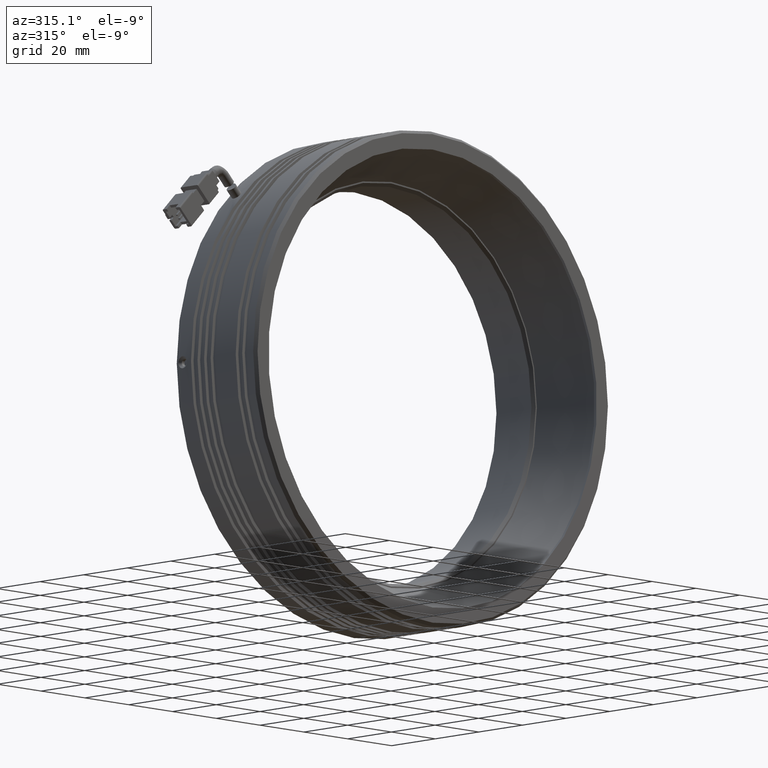
[diagram: clean part render]
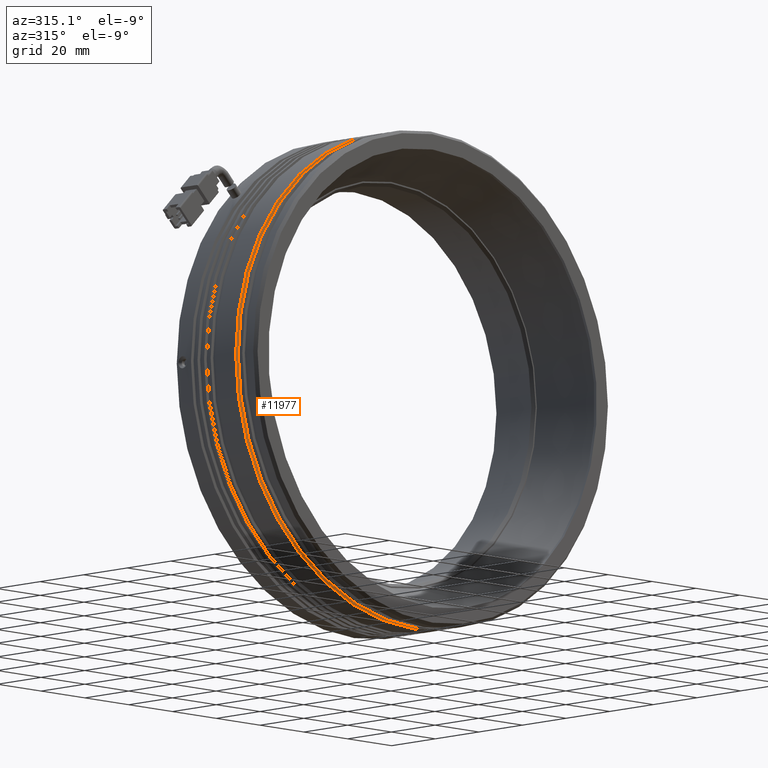
[diagram: same view with one face highlighted and labeled with its STEP entity id]
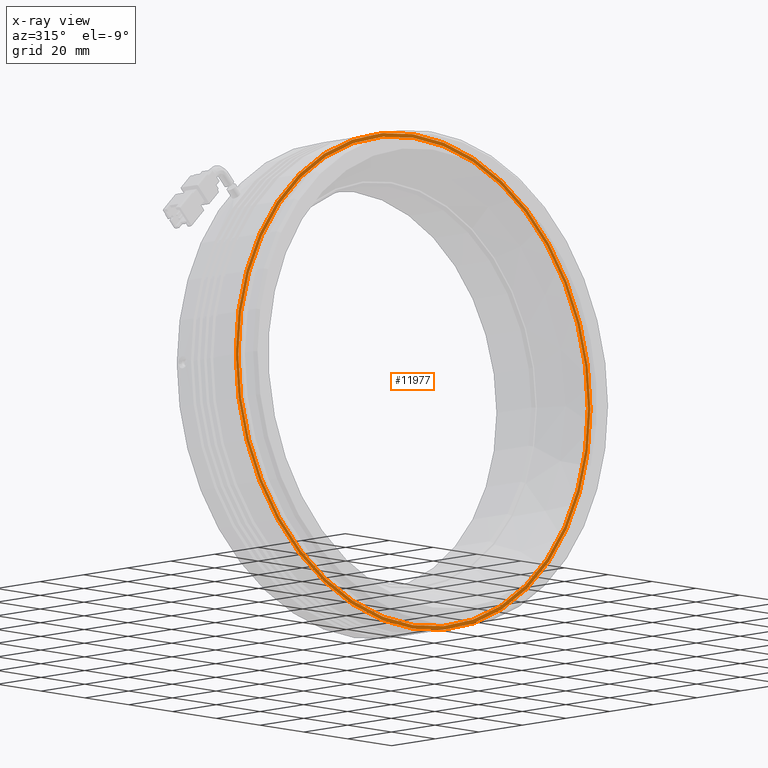
[diagram: x-ray of the same camera — body ghosted, the highlighted face saturated]
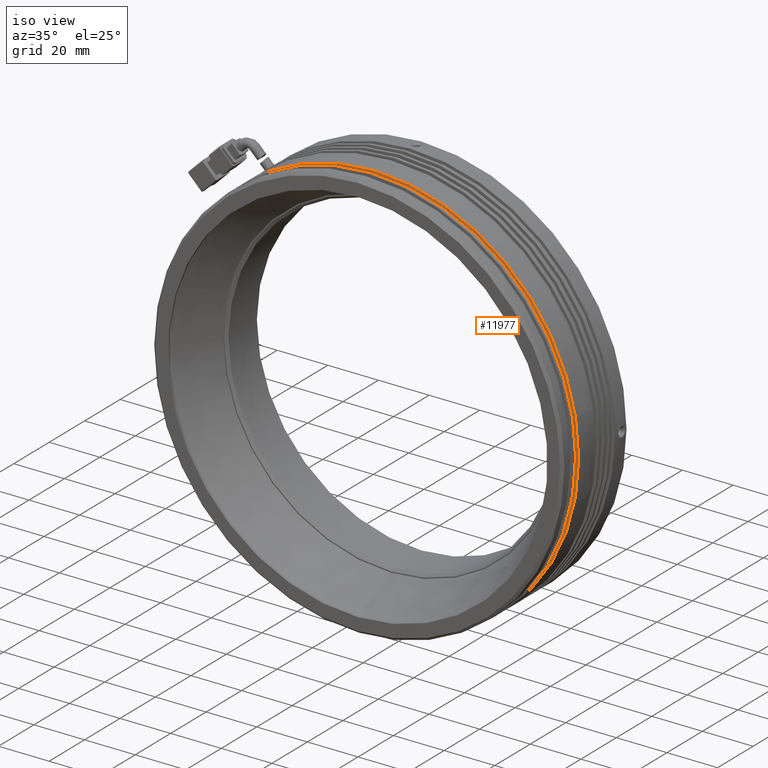
[diagram: same view with one face highlighted and labeled with its STEP entity id]
A machine part, auxiliary view. The second image highlights one B-rep face of the part: STEP entity #11977.
The next image is the same camera in x-ray: the body ghosted, the highlighted face saturated — about 0% of this face is hidden behind the body in this view.
A second angle (iso view) of the same face is appended — the face is thin or edge-on in the first view.
In plain terms, the highlighted planar face has unit normal (0, 1, 0).
Its self-contained STEP definition (entity closure, byte-faithful):
#106 = CIRCLE ( 'NONE', #4653, 80.99999999999995700 ) ;
#1209 = PLANE ( 'NONE',  #8910 ) ;
#1760 = DIRECTION ( 'NONE',  ( -0.0000000000000000000, -1.000000000000000000, -0.0000000000000000000 ) ) ;
#2113 = VERTEX_POINT ( 'NONE', #11861 ) ;
#2254 = DIRECTION ( 'NONE',  ( 0.0000000000000000000, 1.000000000000000000, 0.0000000000000000000 ) ) ;
#2586 = CARTESIAN_POINT ( 'NONE',  ( -9.785022266880036000, -0.1288856281599498600, 0.0000000000000000000 ) ) ;
#2601 = ORIENTED_EDGE ( 'NONE', *, *, #11670, .F. ) ;
#2995 = CARTESIAN_POINT ( 'NONE',  ( -9.785022266880036000, -0.1288856281599498600, 0.0000000000000000000 ) ) ;
#3282 = EDGE_LOOP ( 'NONE', ( #11369, #2601 ) ) ;
#3354 = VERTEX_POINT ( 'NONE', #6774 ) ;
#3392 = CARTESIAN_POINT ( 'NONE',  ( -9.785022266880036000, -0.1288856281599498600, 0.0000000000000000000 ) ) ;
#3464 = VERTEX_POINT ( 'NONE', #4515 ) ;
#3551 = AXIS2_PLACEMENT_3D ( 'NONE', #3392, #10493, #4387 ) ;
#3566 = DIRECTION ( 'NONE',  ( 0.0000000000000000000, 0.0000000000000000000, -1.000000000000000000 ) ) ;
#3968 = ORIENTED_EDGE ( 'NONE', *, *, #9972, .F. ) ;
#3988 = DIRECTION ( 'NONE',  ( 0.0000000000000000000, 0.0000000000000000000, -1.000000000000000000 ) ) ;
#4111 = EDGE_LOOP ( 'NONE', ( #10907, #3968 ) ) ;
#4251 = FACE_BOUND ( 'NONE', #3282, .T. ) ;
#4387 = DIRECTION ( 'NONE',  ( 0.0000000000000000000, 0.0000000000000000000, -1.000000000000000000 ) ) ;
#4515 = CARTESIAN_POINT ( 'NONE',  ( -9.785022266880036000, -0.1288856281599498600, -80.99999999999995700 ) ) ;
#4653 = AXIS2_PLACEMENT_3D ( 'NONE', #2995, #10062, #3988 ) ;
#5138 = CIRCLE ( 'NONE', #11811, 80.99999999999995700 ) ;
#6091 = EDGE_CURVE ( 'NONE', #2113, #11279, #7783, .T. ) ;
#6774 = CARTESIAN_POINT ( 'NONE',  ( -9.785022266880025300, -0.1288856281599498600, 80.99999999999995700 ) ) ;
#7783 = CIRCLE ( 'NONE', #3551, 79.79999999999991200 ) ;
#7808 = CARTESIAN_POINT ( 'NONE',  ( -9.785022266880036000, -0.1288856281599498600, 0.0000000000000000000 ) ) ;
#8302 = CARTESIAN_POINT ( 'NONE',  ( -9.785022266880036000, -0.1288856281599498600, 0.0000000000000000000 ) ) ;
#8616 = CIRCLE ( 'NONE', #12477, 79.79999999999991200 ) ;
#8806 = DIRECTION ( 'NONE',  ( 0.0000000000000000000, 0.0000000000000000000, -1.000000000000000000 ) ) ;
#8910 = AXIS2_PLACEMENT_3D ( 'NONE', #8302, #2254, #9305 ) ;
#9305 = DIRECTION ( 'NONE',  ( 0.0000000000000000000, -0.0000000000000000000, 1.000000000000000000 ) ) ;
#9629 = DIRECTION ( 'NONE',  ( 0.0000000000000000000, 1.000000000000000000, 0.0000000000000000000 ) ) ;
#9656 = FACE_OUTER_BOUND ( 'NONE', #4111, .T. ) ;
#9972 = EDGE_CURVE ( 'NONE', #3354, #3464, #106, .T. ) ;
#10062 = DIRECTION ( 'NONE',  ( 0.0000000000000000000, 1.000000000000000000, 0.0000000000000000000 ) ) ;
#10493 = DIRECTION ( 'NONE',  ( -0.0000000000000000000, -1.000000000000000000, -0.0000000000000000000 ) ) ;
#10907 = ORIENTED_EDGE ( 'NONE', *, *, #11580, .F. ) ;
#11279 = VERTEX_POINT ( 'NONE', #11927 ) ;
#11369 = ORIENTED_EDGE ( 'NONE', *, *, #6091, .F. ) ;
#11580 = EDGE_CURVE ( 'NONE', #3464, #3354, #5138, .T. ) ;
#11670 = EDGE_CURVE ( 'NONE', #11279, #2113, #8616, .T. ) ;
#11811 = AXIS2_PLACEMENT_3D ( 'NONE', #2586, #9629, #3566 ) ;
#11861 = CARTESIAN_POINT ( 'NONE',  ( -9.785022266880036000, -0.1288856281599498600, -79.79999999999991200 ) ) ;
#11927 = CARTESIAN_POINT ( 'NONE',  ( -9.785022266880025300, -0.1288856281599498600, 79.79999999999991200 ) ) ;
#11977 = ADVANCED_FACE ( 'NONE', ( #9656, #4251 ), #1209, .F. ) ;
#12477 = AXIS2_PLACEMENT_3D ( 'NONE', #7808, #1760, #8806 ) ;